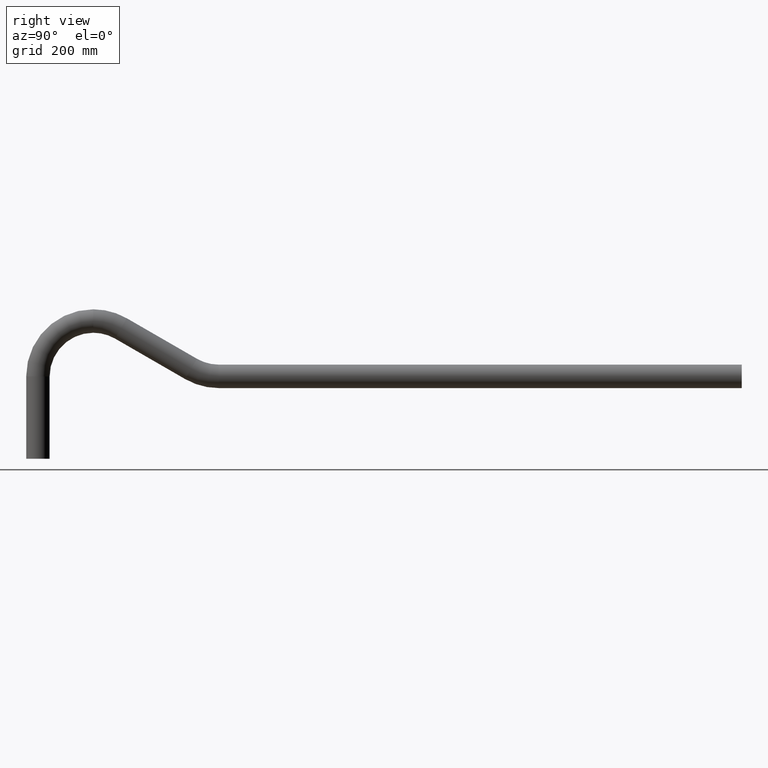
[diagram: clean part render]
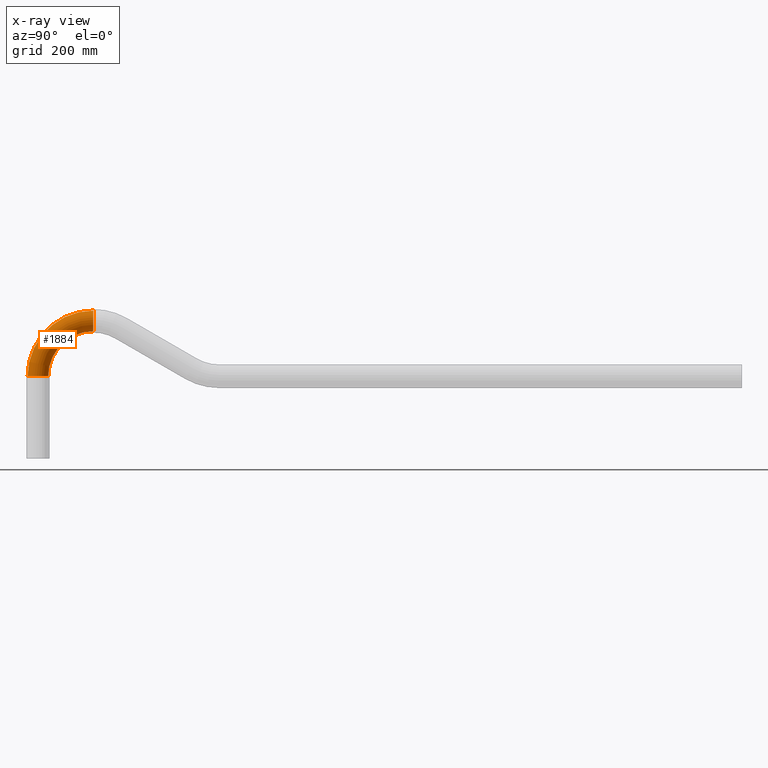
[diagram: x-ray — body ghosted, one internal face saturated and labeled with its STEP entity id]
A machine part, right view, then the same camera in x-ray: the body is ghosted and one INTERNAL B-rep face — a face not visible from any outside direction — is saturated and labeled: STEP entity #1884.
In plain terms, the highlighted toroidal blend (fillet) surface has major radius 100 mm and minor (blend) radius 18.7 mm.
Its self-contained STEP definition (entity closure, byte-faithful):
#254 = DIRECTION ( 'NONE',  ( 0.0000000000000000000, 0.0000000000000000000, 1.000000000000000000 ) ) ;
#979 = ORIENTED_EDGE ( 'NONE', *, *, #6486, .T. ) ;
#1291 = AXIS2_PLACEMENT_3D ( 'NONE', #5867, #10049, #3390 ) ;
#1535 = DIRECTION ( 'NONE',  ( 0.0000000000000000000, -1.000000000000000000, 0.0000000000000000000 ) ) ;
#1692 = CARTESIAN_POINT ( 'NONE',  ( 0.0000000000000000000, 78.79999999999957100, 74.40000000000002000 ) ) ;
#1884 = ADVANCED_FACE ( 'NONE', ( #5071 ), #8301, .F. ) ;
#1956 = DIRECTION ( 'NONE',  ( 0.0000000000000000000, -1.071875439572228200E-015, 1.000000000000000000 ) ) ;
#3046 = VERTEX_POINT ( 'NONE', #4014 ) ;
#3087 = AXIS2_PLACEMENT_3D ( 'NONE', #6081, #1956, #9443 ) ;
#3196 = CIRCLE ( 'NONE', #3087, 18.70000000000000300 ) ;
#3390 = DIRECTION ( 'NONE',  ( 0.0000000000000000000, 0.0000000000000000000, 1.000000000000000000 ) ) ;
#3573 = CIRCLE ( 'NONE', #5450, 118.6999999999999700 ) ;
#3624 = DIRECTION ( 'NONE',  ( -1.000000000000000000, -0.0000000000000000000, 0.0000000000000000000 ) ) ;
#4014 = CARTESIAN_POINT ( 'NONE',  ( 2.290089514405550100E-015, -39.90000000000041800, 74.39999999999989200 ) ) ;
#4168 = ORIENTED_EDGE ( 'NONE', *, *, #9466, .F. ) ;
#4179 = DIRECTION ( 'NONE',  ( -1.000000000000000000, -0.0000000000000000000, 0.0000000000000000000 ) ) ;
#4717 = ORIENTED_EDGE ( 'NONE', *, *, #5108, .F. ) ;
#4737 = CIRCLE ( 'NONE', #1291, 81.29999999999998300 ) ;
#5071 = FACE_OUTER_BOUND ( 'NONE', #9855, .T. ) ;
#5108 = EDGE_CURVE ( 'NONE', #3046, #5754, #3196, .T. ) ;
#5250 = CARTESIAN_POINT ( 'NONE',  ( 0.0000000000000000000, 78.79999999999957100, 74.40000000000002000 ) ) ;
#5450 = AXIS2_PLACEMENT_3D ( 'NONE', #1692, #4179, #8380 ) ;
#5726 = CARTESIAN_POINT ( 'NONE',  ( 0.0000000000000000000, 78.79999999999957100, 174.4000000000000100 ) ) ;
#5754 = VERTEX_POINT ( 'NONE', #7634 ) ;
#5867 = CARTESIAN_POINT ( 'NONE',  ( 2.290089514405550900E-015, 78.79999999999957100, 74.40000000000002000 ) ) ;
#6081 = CARTESIAN_POINT ( 'NONE',  ( 0.0000000000000000000, -21.20000000000041100, 74.39999999999990600 ) ) ;
#6486 = EDGE_CURVE ( 'NONE', #3046, #7399, #3573, .T. ) ;
#6988 = CARTESIAN_POINT ( 'NONE',  ( 0.0000000000000000000, 78.79999999999957100, 155.7000000000000200 ) ) ;
#7399 = VERTEX_POINT ( 'NONE', #7925 ) ;
#7515 = AXIS2_PLACEMENT_3D ( 'NONE', #5726, #1535, #9907 ) ;
#7634 = CARTESIAN_POINT ( 'NONE',  ( 0.0000000000000000000, -2.500000000000411700, 74.39999999999992000 ) ) ;
#7925 = CARTESIAN_POINT ( 'NONE',  ( 0.0000000000000000000, 78.79999999999957100, 193.0999999999999900 ) ) ;
#8301 = TOROIDAL_SURFACE ( 'NONE', #8429, 99.99999999999997200, 18.70000000000000300 ) ;
#8327 = EDGE_CURVE ( 'NONE', #5754, #9707, #4737, .T. ) ;
#8380 = DIRECTION ( 'NONE',  ( 0.0000000000000000000, 0.0000000000000000000, 1.000000000000000000 ) ) ;
#8429 = AXIS2_PLACEMENT_3D ( 'NONE', #5250, #3624, #254 ) ;
#9118 = CIRCLE ( 'NONE', #7515, 18.69999999999999600 ) ;
#9408 = ORIENTED_EDGE ( 'NONE', *, *, #8327, .F. ) ;
#9443 = DIRECTION ( 'NONE',  ( 0.0000000000000000000, 1.000000000000000000, 7.421276902574574900E-016 ) ) ;
#9466 = EDGE_CURVE ( 'NONE', #9707, #7399, #9118, .T. ) ;
#9707 = VERTEX_POINT ( 'NONE', #6988 ) ;
#9855 = EDGE_LOOP ( 'NONE', ( #4717, #979, #4168, #9408 ) ) ;
#9907 = DIRECTION ( 'NONE',  ( 0.0000000000000000000, 0.0000000000000000000, -1.000000000000000000 ) ) ;
#10049 = DIRECTION ( 'NONE',  ( -1.000000000000000000, -0.0000000000000000000, 0.0000000000000000000 ) ) ;